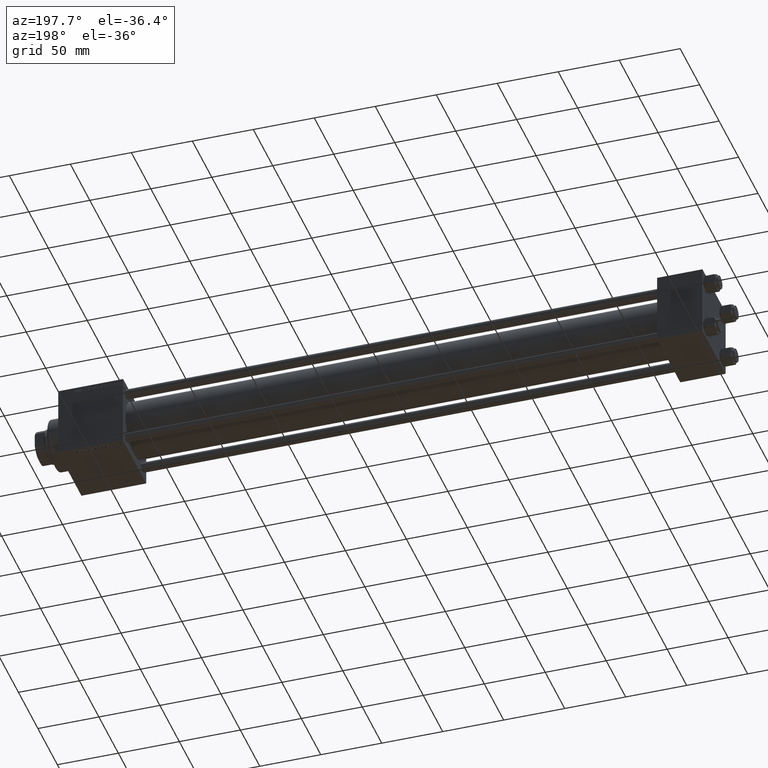
[diagram: clean part render]
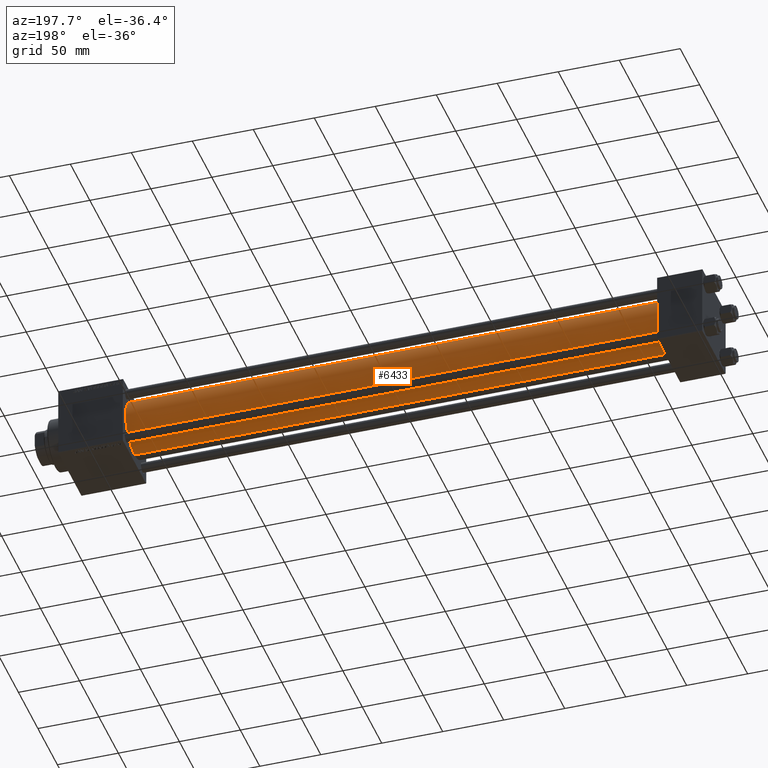
[diagram: same view with one face highlighted and labeled with its STEP entity id]
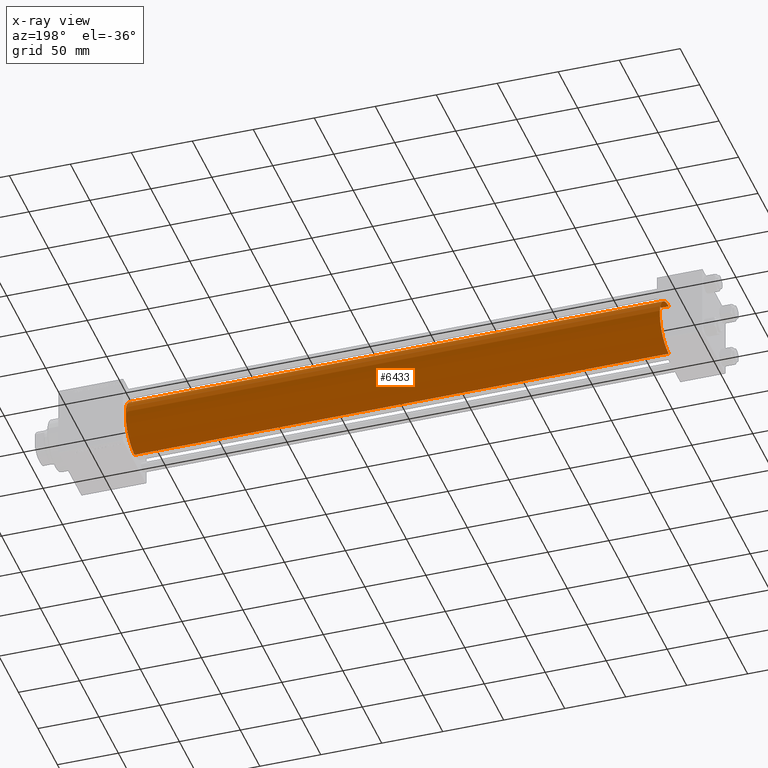
[diagram: x-ray of the same camera — body ghosted, the highlighted face saturated]
A machine part, auxiliary view. The second image highlights one B-rep face of the part: STEP entity #6433.
The next image is the same camera in x-ray: the body ghosted, the highlighted face saturated — about 0% of this face is hidden behind the body in this view.
In plain terms, the highlighted cylindrical surface (edge-blend (fillet) strip) has radius 23 mm, axis along (-1, -0, -0).
Its self-contained STEP definition (entity closure, byte-faithful):
#715 = DIRECTION ( 'NONE',  ( -1.000000000000000000, -0.000000000000000000, -0.000000000000000000 ) ) ;
#5639 = CARTESIAN_POINT ( 'NONE',  ( 36.99999999999997868, 2.146024240737016609E-16, -23.00000000000000000 ) ) ;
#6433 = ADVANCED_FACE ( 'NONE', ( #35398 ), #41700, .T. ) ;
#7847 = DIRECTION ( 'NONE',  ( -1.000000000000000000, -0.000000000000000000, -0.000000000000000000 ) ) ;
#8345 = LINE ( 'NONE', #27342, #44331 ) ;
#10284 = CARTESIAN_POINT ( 'NONE',  ( 475.0000000000000000, -2.602085213965210642E-15, 0.000000000000000000 ) ) ;
#11650 = VERTEX_POINT ( 'NONE', #21451 ) ;
#12197 = EDGE_CURVE ( 'NONE', #48370, #40632, #8345, .T. ) ;
#13921 = AXIS2_PLACEMENT_3D ( 'NONE', #10284, #26133, #33675 ) ;
#14602 = CARTESIAN_POINT ( 'NONE',  ( 36.99999999999997868, -2.602085213965210642E-15, 23.00000000000000000 ) ) ;
#17389 = AXIS2_PLACEMENT_3D ( 'NONE', #46898, #47164, #27171 ) ;
#18084 = DIRECTION ( 'NONE',  ( -1.000000000000000000, -0.000000000000000000, -0.000000000000000000 ) ) ;
#18837 = EDGE_CURVE ( 'NONE', #11650, #48370, #33831, .T. ) ;
#21451 = CARTESIAN_POINT ( 'NONE',  ( 475.0000000000000000, 2.146024240737016609E-16, -23.00000000000000000 ) ) ;
#21474 = ORIENTED_EDGE ( 'NONE', *, *, #30594, .T. ) ;
#23867 = CARTESIAN_POINT ( 'NONE',  ( 475.0000000000000000, 2.146024240737016609E-16, -23.00000000000000000 ) ) ;
#24681 = EDGE_LOOP ( 'NONE', ( #27547, #21474, #45995, #45823 ) ) ;
#26133 = DIRECTION ( 'NONE',  ( 1.000000000000000000, 0.000000000000000000, 0.000000000000000000 ) ) ;
#27171 = DIRECTION ( 'NONE',  ( 0.000000000000000000, 0.000000000000000000, 1.000000000000000000 ) ) ;
#27342 = CARTESIAN_POINT ( 'NONE',  ( 475.0000000000000000, -2.602085213965210642E-15, 23.00000000000000000 ) ) ;
#27547 = ORIENTED_EDGE ( 'NONE', *, *, #18837, .F. ) ;
#30594 = EDGE_CURVE ( 'NONE', #11650, #41222, #47743, .T. ) ;
#32882 = EDGE_CURVE ( 'NONE', #41222, #40632, #38127, .T. ) ;
#33675 = DIRECTION ( 'NONE',  ( 0.000000000000000000, 0.000000000000000000, -1.000000000000000000 ) ) ;
#33831 = CIRCLE ( 'NONE', #13921, 23.00000000000000000 ) ;
#34364 = AXIS2_PLACEMENT_3D ( 'NONE', #46112, #18084, #49746 ) ;
#35398 = FACE_OUTER_BOUND ( 'NONE', #24681, .T. ) ;
#38127 = CIRCLE ( 'NONE', #17389, 23.00000000000000000 ) ;
#40632 = VERTEX_POINT ( 'NONE', #14602 ) ;
#41222 = VERTEX_POINT ( 'NONE', #5639 ) ;
#41700 = CYLINDRICAL_SURFACE ( 'NONE', #34364, 23.00000000000000000 ) ;
#43049 = VECTOR ( 'NONE', #715, 1000.000000000000000 ) ;
#44331 = VECTOR ( 'NONE', #7847, 1000.000000000000000 ) ;
#45823 = ORIENTED_EDGE ( 'NONE', *, *, #12197, .F. ) ;
#45995 = ORIENTED_EDGE ( 'NONE', *, *, #32882, .T. ) ;
#46112 = CARTESIAN_POINT ( 'NONE',  ( 475.0000000000000000, -2.602085213965210642E-15, 0.000000000000000000 ) ) ;
#46898 = CARTESIAN_POINT ( 'NONE',  ( 36.99999999999997868, -2.602085213965210642E-15, 0.000000000000000000 ) ) ;
#47164 = DIRECTION ( 'NONE',  ( 1.000000000000000000, -0.000000000000000000, 0.000000000000000000 ) ) ;
#47743 = LINE ( 'NONE', #23867, #43049 ) ;
#48022 = CARTESIAN_POINT ( 'NONE',  ( 475.0000000000000000, -2.602085213965210642E-15, 23.00000000000000000 ) ) ;
#48370 = VERTEX_POINT ( 'NONE', #48022 ) ;
#49746 = DIRECTION ( 'NONE',  ( 0.000000000000000000, 0.000000000000000000, 1.000000000000000000 ) ) ;